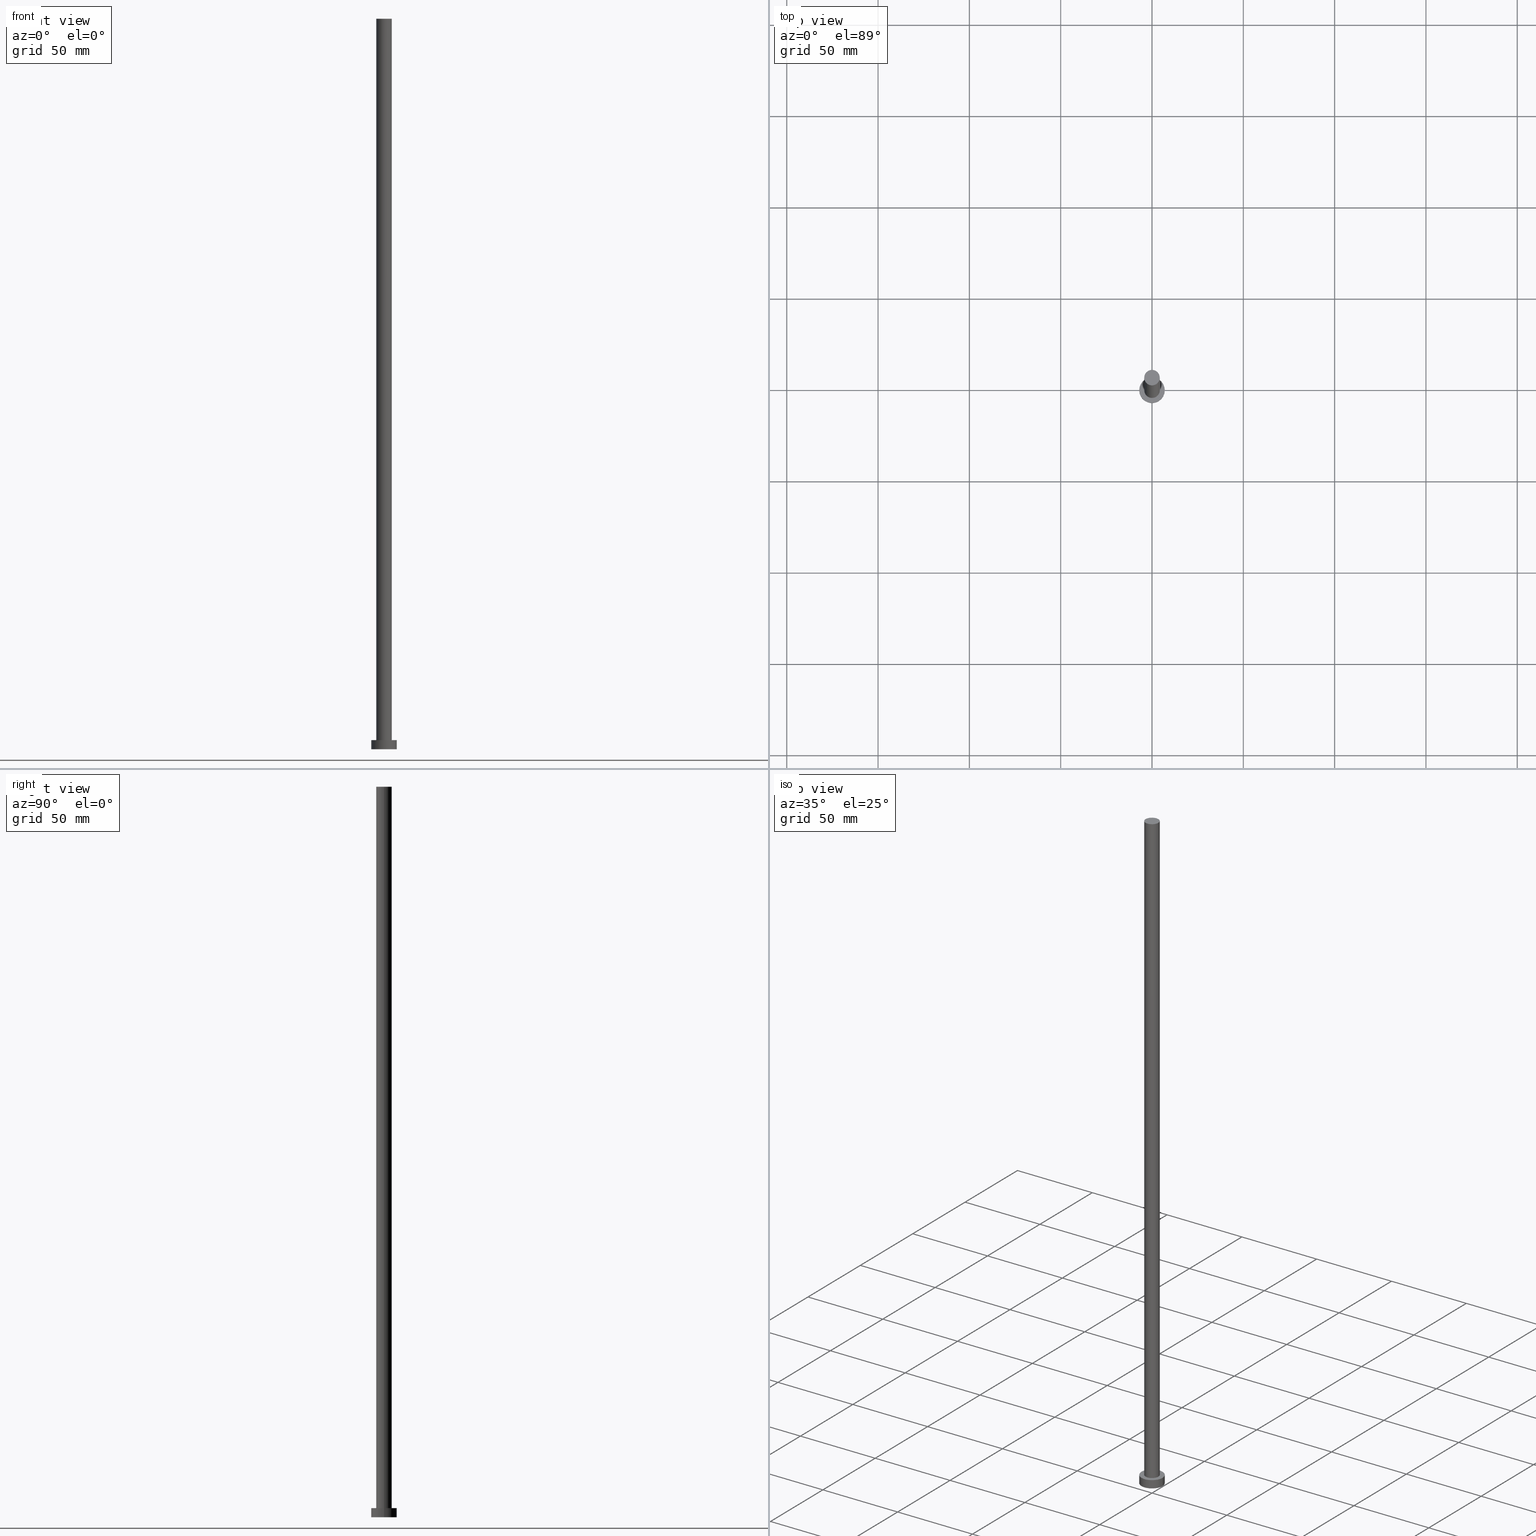
[diagram: canonical four-view strip — front | top / right | iso, engineering-drawing reading convention]
A machine part, canonical four-view strip (front | top / right | iso — engineering-drawing reading convention). The complete STEP part file that produces these views, byte-faithful:
ISO-10303-21;
HEADER;
FILE_DESCRIPTION (( 'STEP AP203' ),
    '1' );
FILE_NAME ('1c6f.STEP',
    '2023-02-12T11:37:33',
    ( '' ),
    ( '' ),
    'SwSTEP 2.0',
    'SolidWorks 2019',
    '' );
FILE_SCHEMA (( 'CONFIG_CONTROL_DESIGN' ));
ENDSEC;

DATA;
#1 = CARTESIAN_POINT ( 'NONE',  ( 0.000000000000000000, 0.000000000000000000, 400.0000000000000000 ) ) ;
#2 = PERSON_AND_ORGANIZATION_ROLE ( 'design_owner' ) ;
#3 = DIRECTION ( 'NONE',  ( 1.000000000000000000, 0.000000000000000000, 0.000000000000000000 ) ) ;
#4 = ORIENTED_EDGE ( 'NONE', *, *, #15, .T. ) ;
#5 = PERSON_AND_ORGANIZATION ( #201, #161 ) ;
#6 = PERSON_AND_ORGANIZATION_ROLE ( 'creator' ) ;
#7 = PLANE ( 'NONE',  #164 ) ;
#8 = DIRECTION ( 'NONE',  ( -0.000000000000000000, -0.000000000000000000, -1.000000000000000000 ) ) ;
#9 = ORIENTED_EDGE ( 'NONE', *, *, #183, .F. ) ;
#10 = DIRECTION ( 'NONE',  ( 1.000000000000000000, 0.000000000000000000, 0.000000000000000000 ) ) ;
#11 = CC_DESIGN_PERSON_AND_ORGANIZATION_ASSIGNMENT ( #91, #6, ( #222 ) ) ;
#12 = ORIENTED_EDGE ( 'NONE', *, *, #79, .T. ) ;
#13 = PERSON_AND_ORGANIZATION ( #201, #161 ) ;
#14 = CARTESIAN_POINT ( 'NONE',  ( 0.000000000000000000, 0.000000000000000000, 5.000000000000000000 ) ) ;
#15 = EDGE_CURVE ( 'NONE', #96, #127, #131, .T. ) ;
#16 = CYLINDRICAL_SURFACE ( 'NONE', #143, 4.250000000000000000 ) ;
#17 = EDGE_LOOP ( 'NONE', ( #53, #198 ) ) ;
#18 = SECURITY_CLASSIFICATION_LEVEL ( 'unclassified' ) ;
#19 = AXIS2_PLACEMENT_3D ( 'NONE', #232, #8, #83 ) ;
#20 = VERTEX_POINT ( 'NONE', #111 ) ;
#21 = CC_DESIGN_PERSON_AND_ORGANIZATION_ASSIGNMENT ( #36, #74, ( #222 ) ) ;
#22 = CARTESIAN_POINT ( 'NONE',  ( -7.000000000000000000, 0.000000000000000000, 0.000000000000000000 ) ) ;
#23 = PLANE ( 'NONE',  #190 ) ;
#24 = LINE ( 'NONE', #145, #77 ) ;
#25 = EDGE_CURVE ( 'NONE', #248, #167, #124, .T. ) ;
#26 = LINE ( 'NONE', #61, #230 ) ;
#27 = AXIS2_PLACEMENT_3D ( 'NONE', #228, #246, #59 ) ;
#28 = CARTESIAN_POINT ( 'NONE',  ( -4.250000000000000000, 0.000000000000000000, 400.0000000000000000 ) ) ;
#29 = APPROVAL_DATE_TIME ( #150, #128 ) ;
#30 = AXIS2_PLACEMENT_3D ( 'NONE', #186, #44, #82 ) ;
#31 = CC_DESIGN_APPROVAL ( #49, ( #222 ) ) ;
#32 =( NAMED_UNIT ( * ) SI_UNIT ( $, .STERADIAN. ) SOLID_ANGLE_UNIT ( ) );
#33 = ORIENTED_EDGE ( 'NONE', *, *, #220, .F. ) ;
#34 = COORDINATED_UNIVERSAL_TIME_OFFSET ( 1, 0, .AHEAD. ) ;
#35 = VERTEX_POINT ( 'NONE', #206 ) ;
#36 = PERSON_AND_ORGANIZATION ( #201, #161 ) ;
#37 = ADVANCED_FACE ( 'NONE', ( #57, #60 ), #23, .T. ) ;
#38 = DATE_AND_TIME ( #157, #73 ) ;
#39 = EDGE_LOOP ( 'NONE', ( #135, #219 ) ) ;
#40 = ADVANCED_FACE ( 'NONE', ( #208 ), #187, .T. ) ;
#41 = DIRECTION ( 'NONE',  ( 1.000000000000000000, 0.000000000000000000, -0.000000000000000000 ) ) ;
#42 = DIRECTION ( 'NONE',  ( 0.000000000000000000, 0.000000000000000000, 1.000000000000000000 ) ) ;
#43 = CARTESIAN_POINT ( 'NONE',  ( 0.000000000000000000, 0.000000000000000000, 5.000000000000000000 ) ) ;
#44 = DIRECTION ( 'NONE',  ( 0.000000000000000000, 0.000000000000000000, 1.000000000000000000 ) ) ;
#45 = APPROVAL_ROLE ( '' ) ;
#46 = CIRCLE ( 'NONE', #160, 7.000000000000000000 ) ;
#47 = CYLINDRICAL_SURFACE ( 'NONE', #105, 4.250000000000000000 ) ;
#48 = CARTESIAN_POINT ( 'NONE',  ( 0.000000000000000000, 0.000000000000000000, 0.000000000000000000 ) ) ;
#49 = APPROVAL ( #243, 'NEUR�EN�' ) ;
#50 = COORDINATED_UNIVERSAL_TIME_OFFSET ( 1, 0, .AHEAD. ) ;
#51 = ORIENTED_EDGE ( 'NONE', *, *, #203, .T. ) ;
#52 = ORIENTED_EDGE ( 'NONE', *, *, #79, .F. ) ;
#53 = ORIENTED_EDGE ( 'NONE', *, *, #100, .T. ) ;
#54 = PRODUCT_DEFINITION ( 'NEZN�M�', '', #222, #70 ) ;
#55 = CALENDAR_DATE ( 2023, 12, 2 ) ;
#56 = EDGE_LOOP ( 'NONE', ( #244, #130 ) ) ;
#57 = FACE_BOUND ( 'NONE', #56, .T. ) ;
#58 = VECTOR ( 'NONE', #229, 1000.000000000000000 ) ;
#59 = DIRECTION ( 'NONE',  ( 1.000000000000000000, 0.000000000000000000, 0.000000000000000000 ) ) ;
#60 = FACE_OUTER_BOUND ( 'NONE', #39, .T. ) ;
#61 = CARTESIAN_POINT ( 'NONE',  ( -7.000000000000000000, 0.000000000000000000, 5.000000000000000000 ) ) ;
#62 = CARTESIAN_POINT ( 'NONE',  ( 0.000000000000000000, 0.000000000000000000, 5.000000000000000000 ) ) ;
#63 = AXIS2_PLACEMENT_3D ( 'NONE', #86, #68, #3 ) ;
#64 = LOCAL_TIME ( 12, 37, 33.00000000000000000, #34 ) ;
#65 = PERSON_AND_ORGANIZATION ( #201, #161 ) ;
#66 = MECHANICAL_CONTEXT ( 'NONE', #175, 'mechanical' ) ;
#67 = EDGE_CURVE ( 'NONE', #35, #96, #24, .T. ) ;
#68 = DIRECTION ( 'NONE',  ( 0.000000000000000000, 0.000000000000000000, 1.000000000000000000 ) ) ;
#69 = CALENDAR_DATE ( 2023, 12, 2 ) ;
#70 = DESIGN_CONTEXT ( 'detailed design', #188, 'design' ) ;
#71 = DIRECTION ( 'NONE',  ( -0.000000000000000000, -0.000000000000000000, -1.000000000000000000 ) ) ;
#72 = SHAPE_DEFINITION_REPRESENTATION ( #235, #214 ) ;
#73 = LOCAL_TIME ( 12, 37, 33.00000000000000000, #89 ) ;
#74 = PERSON_AND_ORGANIZATION_ROLE ( 'design_supplier' ) ;
#75 = ORIENTED_EDGE ( 'NONE', *, *, #195, .T. ) ;
#76 = DATE_AND_TIME ( #217, #64 ) ;
#77 = VECTOR ( 'NONE', #114, 1000.000000000000000 ) ;
#78 = VECTOR ( 'NONE', #71, 1000.000000000000000 ) ;
#79 = EDGE_CURVE ( 'NONE', #223, #127, #26, .T. ) ;
#80 = CARTESIAN_POINT ( 'NONE',  ( 0.000000000000000000, 0.000000000000000000, 0.000000000000000000 ) ) ;
#81 = CYLINDRICAL_SURFACE ( 'NONE', #19, 7.000000000000000000 ) ;
#82 = DIRECTION ( 'NONE',  ( 1.000000000000000000, 0.000000000000000000, 0.000000000000000000 ) ) ;
#83 = DIRECTION ( 'NONE',  ( -1.000000000000000000, 0.000000000000000000, 0.000000000000000000 ) ) ;
#84 = APPLICATION_PROTOCOL_DEFINITION ( 'international standard', 'config_control_design', 1994, #188 ) ;
#85 = DIRECTION ( 'NONE',  ( 0.000000000000000000, 0.000000000000000000, 1.000000000000000000 ) ) ;
#86 = CARTESIAN_POINT ( 'NONE',  ( 0.000000000000000000, 0.000000000000000000, 0.000000000000000000 ) ) ;
#87 = DIRECTION ( 'NONE',  ( -0.000000000000000000, -0.000000000000000000, -1.000000000000000000 ) ) ;
#88 = PERSON_AND_ORGANIZATION_ROLE ( 'creator' ) ;
#89 = COORDINATED_UNIVERSAL_TIME_OFFSET ( 1, 0, .AHEAD. ) ;
#90 = EDGE_LOOP ( 'NONE', ( #132, #218, #12, #75 ) ) ;
#91 = PERSON_AND_ORGANIZATION ( #201, #161 ) ;
#92 = DATE_TIME_ROLE ( 'creation_date' ) ;
#93 = CC_DESIGN_DATE_AND_TIME_ASSIGNMENT ( #38, #92, ( #54 ) ) ;
#94 = CC_DESIGN_SECURITY_CLASSIFICATION ( #181, ( #222 ) ) ;
#95 = EDGE_LOOP ( 'NONE', ( #9, #221, #4, #52 ) ) ;
#96 = VERTEX_POINT ( 'NONE', #101 ) ;
#97 = DIRECTION ( 'NONE',  ( 1.000000000000000000, 0.000000000000000000, -0.000000000000000000 ) ) ;
#98 = CLOSED_SHELL ( 'NONE', ( #224, #123, #169, #37, #118, #253, #40 ) ) ;
#99 = ORIENTED_EDGE ( 'NONE', *, *, #15, .F. ) ;
#100 = EDGE_CURVE ( 'NONE', #185, #20, #110, .T. ) ;
#101 = CARTESIAN_POINT ( 'NONE',  ( 7.000000000000000000, 8.572527594031473190E-16, 0.000000000000000000 ) ) ;
#102 = CARTESIAN_POINT ( 'NONE',  ( 0.000000000000000000, 0.000000000000000000, 400.0000000000000000 ) ) ;
#103 = APPROVAL_STATUS ( 'not_yet_approved' ) ;
#104 = PERSON_AND_ORGANIZATION ( #201, #161 ) ;
#105 = AXIS2_PLACEMENT_3D ( 'NONE', #148, #173, #233 ) ;
#106 = EDGE_CURVE ( 'NONE', #20, #185, #120, .T. ) ;
#107 = CC_DESIGN_APPROVAL ( #128, ( #54 ) ) ;
#108 = DIRECTION ( 'NONE',  ( -1.000000000000000000, 0.000000000000000000, 0.000000000000000000 ) ) ;
#109 = DATE_TIME_ROLE ( 'classification_date' ) ;
#110 = CIRCLE ( 'NONE', #30, 4.250000000000000000 ) ;
#111 = CARTESIAN_POINT ( 'NONE',  ( 4.250000000000000000, 5.204748896376249713E-16, 400.0000000000000000 ) ) ;
#112 = DIRECTION ( 'NONE',  ( 0.000000000000000000, 0.000000000000000000, 1.000000000000000000 ) ) ;
#113 = CC_DESIGN_PERSON_AND_ORGANIZATION_ASSIGNMENT ( #13, #2, ( #255 ) ) ;
#114 = DIRECTION ( 'NONE',  ( -0.000000000000000000, -0.000000000000000000, -1.000000000000000000 ) ) ;
#115 = DIRECTION ( 'NONE',  ( 1.000000000000000000, 0.000000000000000000, 0.000000000000000000 ) ) ;
#116 = CC_DESIGN_DATE_AND_TIME_ASSIGNMENT ( #134, #109, ( #181 ) ) ;
#117 = FACE_OUTER_BOUND ( 'NONE', #90, .T. ) ;
#118 = ADVANCED_FACE ( 'NONE', ( #138 ), #7, .F. ) ;
#119 =( LENGTH_UNIT ( ) NAMED_UNIT ( * ) SI_UNIT ( .MILLI., .METRE. ) );
#120 = CIRCLE ( 'NONE', #180, 4.250000000000000000 ) ;
#121 = LINE ( 'NONE', #28, #78 ) ;
#122 = DIRECTION ( 'NONE',  ( 1.000000000000000000, 0.000000000000000000, 0.000000000000000000 ) ) ;
#123 = ADVANCED_FACE ( 'NONE', ( #168 ), #81, .T. ) ;
#124 = CIRCLE ( 'NONE', #27, 4.250000000000000000 ) ;
#125 = DIRECTION ( 'NONE',  ( 0.000000000000000000, 0.000000000000000000, 1.000000000000000000 ) ) ;
#126 = CALENDAR_DATE ( 2023, 12, 2 ) ;
#127 = VERTEX_POINT ( 'NONE', #22 ) ;
#128 = APPROVAL ( #103, 'NEUR�EN�' ) ;
#129 = APPROVAL_ROLE ( '' ) ;
#130 = ORIENTED_EDGE ( 'NONE', *, *, #25, .F. ) ;
#131 = CIRCLE ( 'NONE', #142, 7.000000000000000000 ) ;
#132 = ORIENTED_EDGE ( 'NONE', *, *, #67, .F. ) ;
#133 = LOCAL_TIME ( 12, 37, 33.00000000000000000, #136 ) ;
#134 = DATE_AND_TIME ( #126, #133 ) ;
#135 = ORIENTED_EDGE ( 'NONE', *, *, #153, .T. ) ;
#136 = COORDINATED_UNIVERSAL_TIME_OFFSET ( 1, 0, .AHEAD. ) ;
#137 = ORIENTED_EDGE ( 'NONE', *, *, #106, .F. ) ;
#138 = FACE_OUTER_BOUND ( 'NONE', #177, .T. ) ;
#139 = DIRECTION ( 'NONE',  ( 0.000000000000000000, 0.000000000000000000, 1.000000000000000000 ) ) ;
#140 = ORIENTED_EDGE ( 'NONE', *, *, #195, .F. ) ;
#141 = CARTESIAN_POINT ( 'NONE',  ( 4.250000000000000000, 5.204748896376249713E-16, 400.0000000000000000 ) ) ;
#142 = AXIS2_PLACEMENT_3D ( 'NONE', #80, #139, #115 ) ;
#143 = AXIS2_PLACEMENT_3D ( 'NONE', #1, #87, #149 ) ;
#144 = APPROVAL_PERSON_ORGANIZATION ( #179, #49, #178 ) ;
#145 = CARTESIAN_POINT ( 'NONE',  ( 7.000000000000000000, 8.572527594031473190E-16, 5.000000000000000000 ) ) ;
#146 = EDGE_CURVE ( 'NONE', #20, #248, #249, .T. ) ;
#147 = DIRECTION ( 'NONE',  ( -0.000000000000000000, -0.000000000000000000, -1.000000000000000000 ) ) ;
#148 = CARTESIAN_POINT ( 'NONE',  ( 0.000000000000000000, 0.000000000000000000, 400.0000000000000000 ) ) ;
#149 = DIRECTION ( 'NONE',  ( -1.000000000000000000, 0.000000000000000000, 0.000000000000000000 ) ) ;
#150 = DATE_AND_TIME ( #69, #166 ) ;
#151 = PRODUCT_RELATED_PRODUCT_CATEGORY ( 'detail', '', ( #255 ) ) ;
#152 =( NAMED_UNIT ( * ) PLANE_ANGLE_UNIT ( ) SI_UNIT ( $, .RADIAN. ) );
#153 = EDGE_CURVE ( 'NONE', #223, #35, #171, .T. ) ;
#154 = APPROVAL_PERSON_ORGANIZATION ( #65, #128, #45 ) ;
#155 = PERSON_AND_ORGANIZATION_ROLE ( 'classification_officer' ) ;
#156 = APPROVAL_STATUS ( 'not_yet_approved' ) ;
#157 = CALENDAR_DATE ( 2023, 12, 2 ) ;
#158 = AXIS2_PLACEMENT_3D ( 'NONE', #102, #112, #227 ) ;
#159 = ORIENTED_EDGE ( 'NONE', *, *, #100, .F. ) ;
#160 = AXIS2_PLACEMENT_3D ( 'NONE', #210, #125, #192 ) ;
#161 = ORGANIZATION ( 'NEUR�EN�', 'NEUR�EN�', '' ) ;
#162 = DIRECTION ( 'NONE',  ( -0.000000000000000000, -0.000000000000000000, -1.000000000000000000 ) ) ;
#163 = DIRECTION ( 'NONE',  ( 1.000000000000000000, 0.000000000000000000, 0.000000000000000000 ) ) ;
#164 = AXIS2_PLACEMENT_3D ( 'NONE', #205, #225, #97 ) ;
#165 = CC_DESIGN_PERSON_AND_ORGANIZATION_ASSIGNMENT ( #104, #88, ( #54 ) ) ;
#166 = LOCAL_TIME ( 12, 37, 33.00000000000000000, #236 ) ;
#167 = VERTEX_POINT ( 'NONE', #170 ) ;
#168 = FACE_OUTER_BOUND ( 'NONE', #95, .T. ) ;
#169 = ADVANCED_FACE ( 'NONE', ( #117 ), #247, .T. ) ;
#170 = CARTESIAN_POINT ( 'NONE',  ( -4.250000000000000000, 0.000000000000000000, 5.000000000000000000 ) ) ;
#171 = CIRCLE ( 'NONE', #211, 7.000000000000000000 ) ;
#172 = FACE_OUTER_BOUND ( 'NONE', #245, .T. ) ;
#173 = DIRECTION ( 'NONE',  ( -0.000000000000000000, -0.000000000000000000, -1.000000000000000000 ) ) ;
#174 = CARTESIAN_POINT ( 'NONE',  ( -7.000000000000000000, 0.000000000000000000, 5.000000000000000000 ) ) ;
#175 = APPLICATION_CONTEXT ( 'configuration controlled 3d designs of mechanical parts and assemblies' ) ;
#176 = APPROVAL_DATE_TIME ( #200, #49 ) ;
#177 = EDGE_LOOP ( 'NONE', ( #140, #99 ) ) ;
#178 = APPROVAL_ROLE ( '' ) ;
#179 = PERSON_AND_ORGANIZATION ( #201, #161 ) ;
#180 = AXIS2_PLACEMENT_3D ( 'NONE', #184, #209, #10 ) ;
#181 = SECURITY_CLASSIFICATION ( '', '', #18 ) ;
#182 = ORIENTED_EDGE ( 'NONE', *, *, #146, .F. ) ;
#183 = EDGE_CURVE ( 'NONE', #35, #223, #46, .T. ) ;
#184 = CARTESIAN_POINT ( 'NONE',  ( 0.000000000000000000, 0.000000000000000000, 400.0000000000000000 ) ) ;
#185 = VERTEX_POINT ( 'NONE', #212 ) ;
#186 = CARTESIAN_POINT ( 'NONE',  ( 0.000000000000000000, 0.000000000000000000, 400.0000000000000000 ) ) ;
#187 = PLANE ( 'NONE',  #158 ) ;
#188 = APPLICATION_CONTEXT ( 'configuration controlled 3d designs of mechanical parts and assemblies' ) ;
#189 = ORIENTED_EDGE ( 'NONE', *, *, #220, .T. ) ;
#190 = AXIS2_PLACEMENT_3D ( 'NONE', #62, #42, #41 ) ;
#191 = AXIS2_PLACEMENT_3D ( 'NONE', #196, #85, #122 ) ;
#192 = DIRECTION ( 'NONE',  ( 1.000000000000000000, 0.000000000000000000, 0.000000000000000000 ) ) ;
#193 = CIRCLE ( 'NONE', #63, 7.000000000000000000 ) ;
#194 =( GEOMETRIC_REPRESENTATION_CONTEXT ( 3 ) GLOBAL_UNCERTAINTY_ASSIGNED_CONTEXT ( ( #234 ) ) GLOBAL_UNIT_ASSIGNED_CONTEXT ( ( #119, #152, #32 ) ) REPRESENTATION_CONTEXT ( 'NONE', 'WORKASPACE' ) );
#195 = EDGE_CURVE ( 'NONE', #127, #96, #193, .T. ) ;
#196 = CARTESIAN_POINT ( 'NONE',  ( 0.000000000000000000, 0.000000000000000000, 5.000000000000000000 ) ) ;
#197 = PERSON_AND_ORGANIZATION ( #201, #161 ) ;
#198 = ORIENTED_EDGE ( 'NONE', *, *, #106, .T. ) ;
#199 = CIRCLE ( 'NONE', #191, 4.250000000000000000 ) ;
#200 = DATE_AND_TIME ( #55, #226 ) ;
#201 = PERSON ( 'NEUR�EN�', 'NEUR�EN�', 'NEUR�EN�', ('NEUR�EN�'), ('NEUR�EN�'), ('NEUR�EN�') ) ;
#202 = AXIS2_PLACEMENT_3D ( 'NONE', #14, #147, #108 ) ;
#203 = EDGE_CURVE ( 'NONE', #167, #248, #199, .T. ) ;
#204 = DIRECTION ( 'NONE',  ( 0.000000000000000000, 0.000000000000000000, 1.000000000000000000 ) ) ;
#205 = CARTESIAN_POINT ( 'NONE',  ( 0.000000000000000000, 0.000000000000000000, 0.000000000000000000 ) ) ;
#206 = CARTESIAN_POINT ( 'NONE',  ( 7.000000000000000000, 8.572527594031473190E-16, 5.000000000000000000 ) ) ;
#207 = APPROVAL_PERSON_ORGANIZATION ( #197, #242, #129 ) ;
#208 = FACE_OUTER_BOUND ( 'NONE', #17, .T. ) ;
#209 = DIRECTION ( 'NONE',  ( 0.000000000000000000, 0.000000000000000000, 1.000000000000000000 ) ) ;
#210 = CARTESIAN_POINT ( 'NONE',  ( 0.000000000000000000, 0.000000000000000000, 5.000000000000000000 ) ) ;
#211 = AXIS2_PLACEMENT_3D ( 'NONE', #43, #204, #163 ) ;
#212 = CARTESIAN_POINT ( 'NONE',  ( -4.250000000000000000, 0.000000000000000000, 400.0000000000000000 ) ) ;
#213 = DIRECTION ( 'NONE',  ( 1.000000000000000000, 0.000000000000000000, 0.000000000000000000 ) ) ;
#214 = ADVANCED_BREP_SHAPE_REPRESENTATION ( '1c6f', ( #250, #231 ), #194 ) ;
#215 = CARTESIAN_POINT ( 'NONE',  ( 4.250000000000000000, 5.204748896376249713E-16, 5.000000000000000000 ) ) ;
#216 = CC_DESIGN_APPROVAL ( #242, ( #181 ) ) ;
#217 = CALENDAR_DATE ( 2023, 12, 2 ) ;
#218 = ORIENTED_EDGE ( 'NONE', *, *, #153, .F. ) ;
#219 = ORIENTED_EDGE ( 'NONE', *, *, #183, .T. ) ;
#220 = EDGE_CURVE ( 'NONE', #185, #167, #121, .T. ) ;
#221 = ORIENTED_EDGE ( 'NONE', *, *, #67, .T. ) ;
#222 = PRODUCT_DEFINITION_FORMATION_WITH_SPECIFIED_SOURCE ( 'LIBOVOLN�', '', #255, .NOT_KNOWN. ) ;
#223 = VERTEX_POINT ( 'NONE', #174 ) ;
#224 = ADVANCED_FACE ( 'NONE', ( #237 ), #16, .T. ) ;
#225 = DIRECTION ( 'NONE',  ( 0.000000000000000000, 0.000000000000000000, 1.000000000000000000 ) ) ;
#226 = LOCAL_TIME ( 12, 37, 33.00000000000000000, #50 ) ;
#227 = DIRECTION ( 'NONE',  ( 1.000000000000000000, 0.000000000000000000, -0.000000000000000000 ) ) ;
#228 = CARTESIAN_POINT ( 'NONE',  ( 0.000000000000000000, 0.000000000000000000, 5.000000000000000000 ) ) ;
#229 = DIRECTION ( 'NONE',  ( -0.000000000000000000, -0.000000000000000000, -1.000000000000000000 ) ) ;
#230 = VECTOR ( 'NONE', #162, 1000.000000000000000 ) ;
#231 = AXIS2_PLACEMENT_3D ( 'NONE', #48, #252, #213 ) ;
#232 = CARTESIAN_POINT ( 'NONE',  ( 0.000000000000000000, 0.000000000000000000, 5.000000000000000000 ) ) ;
#233 = DIRECTION ( 'NONE',  ( -1.000000000000000000, 0.000000000000000000, 0.000000000000000000 ) ) ;
#234 = UNCERTAINTY_MEASURE_WITH_UNIT (LENGTH_MEASURE( 1.000000000000000082E-05 ), #119, 'distance_accuracy_value', 'NONE');
#235 = PRODUCT_DEFINITION_SHAPE ( 'NONE', 'NONE',  #54 ) ;
#236 = COORDINATED_UNIVERSAL_TIME_OFFSET ( 1, 0, .AHEAD. ) ;
#237 = FACE_OUTER_BOUND ( 'NONE', #251, .T. ) ;
#238 = ORIENTED_EDGE ( 'NONE', *, *, #146, .T. ) ;
#239 = APPROVAL_DATE_TIME ( #76, #242 ) ;
#240 = ORIENTED_EDGE ( 'NONE', *, *, #25, .T. ) ;
#241 = CC_DESIGN_PERSON_AND_ORGANIZATION_ASSIGNMENT ( #5, #155, ( #181 ) ) ;
#242 = APPROVAL ( #156, 'NEUR�EN�' ) ;
#243 = APPROVAL_STATUS ( 'not_yet_approved' ) ;
#244 = ORIENTED_EDGE ( 'NONE', *, *, #203, .F. ) ;
#245 = EDGE_LOOP ( 'NONE', ( #182, #159, #189, #51 ) ) ;
#246 = DIRECTION ( 'NONE',  ( 0.000000000000000000, 0.000000000000000000, 1.000000000000000000 ) ) ;
#247 = CYLINDRICAL_SURFACE ( 'NONE', #202, 7.000000000000000000 ) ;
#248 = VERTEX_POINT ( 'NONE', #215 ) ;
#249 = LINE ( 'NONE', #141, #58 ) ;
#250 = MANIFOLD_SOLID_BREP ( 'P�idat vysunut�m3', #98 ) ;
#251 = EDGE_LOOP ( 'NONE', ( #137, #238, #240, #33 ) ) ;
#252 = DIRECTION ( 'NONE',  ( 0.000000000000000000, 0.000000000000000000, 1.000000000000000000 ) ) ;
#253 = ADVANCED_FACE ( 'NONE', ( #172 ), #47, .T. ) ;
#254 = APPLICATION_PROTOCOL_DEFINITION ( 'international standard', 'config_control_design', 1994, #175 ) ;
#255 = PRODUCT ( '1c6f', '1c6f', '', ( #66 ) ) ;
ENDSEC;
END-ISO-10303-21;
